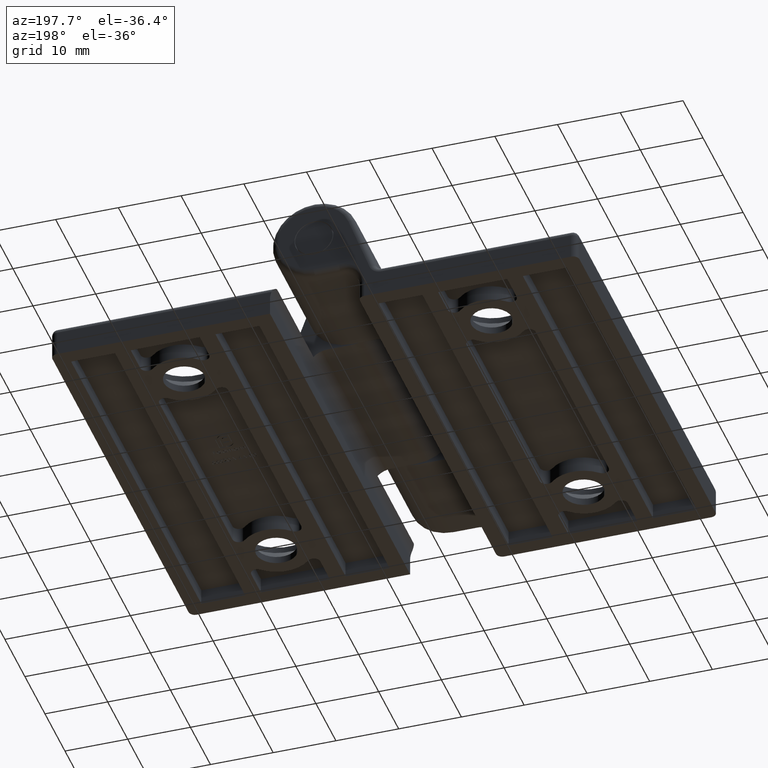
[diagram: clean part render]
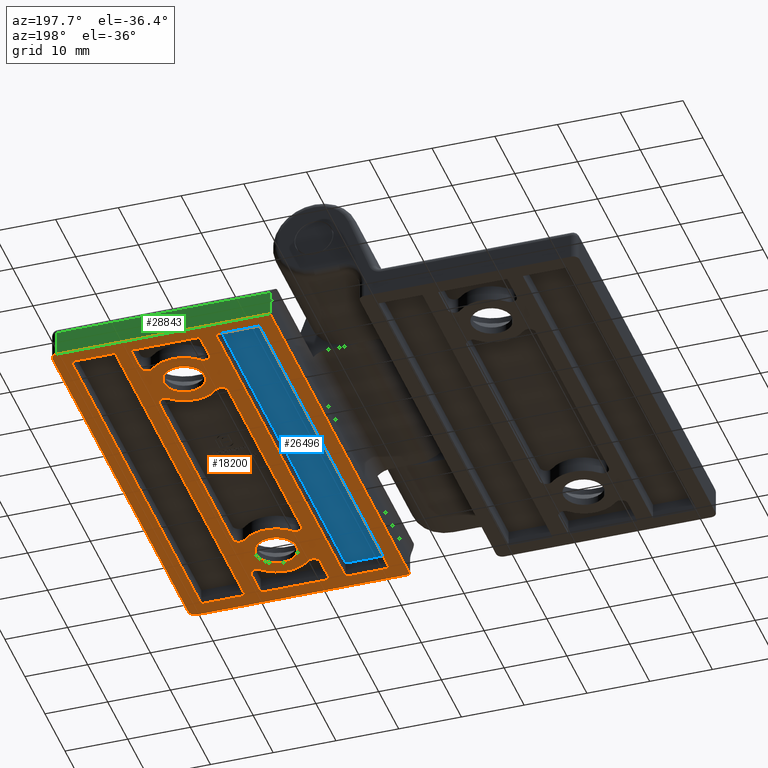
[diagram: same view with three faces highlighted in distinct colors, each labeled with its STEP entity id]
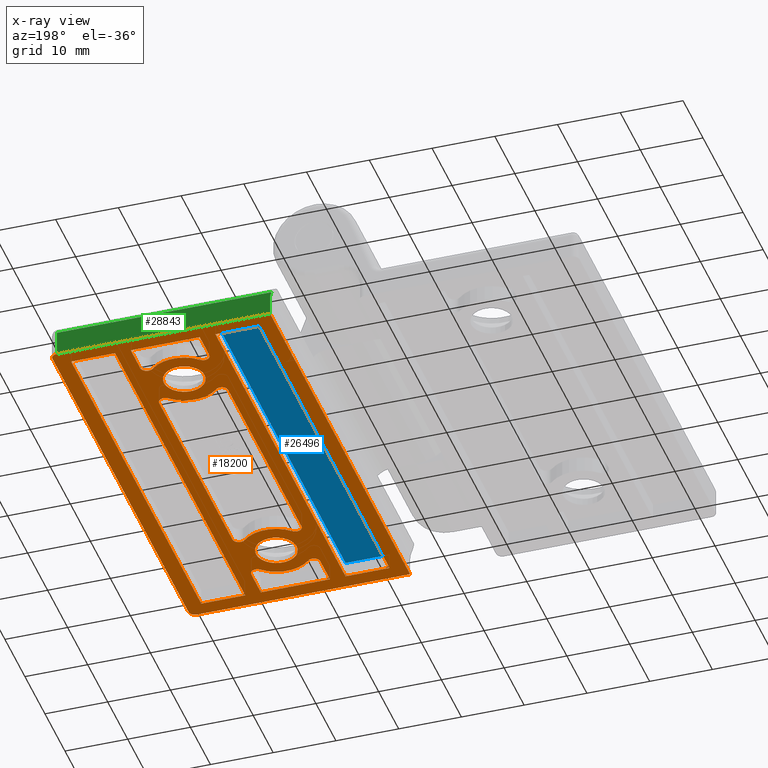
[diagram: x-ray of the same camera — body ghosted, the three highlighted faces saturated]
A machine part, auxiliary view with three faces highlighted in distinct colors.
The next image is the same camera in x-ray (body ghosted, the three faces saturated) — at least one of them is partly hidden behind the body in this view.
Their STEP definitions:

[orange] entity #18200 — the highlighted planar face has unit normal (0, 0, 1).
#126 = DIRECTION ( 'NONE',  ( -1.000000000000000000, 0.000000000000000000, 0.000000000000000000 ) ) ;
#254 = DIRECTION ( 'NONE',  ( 1.000000000000000000, 0.000000000000000000, 0.000000000000000000 ) ) ;
#302 = ORIENTED_EDGE ( 'NONE', *, *, #27271, .T. ) ;
#339 = EDGE_CURVE ( 'NONE', #19906, #16956, #15599, .T. ) ;
#418 = CARTESIAN_POINT ( 'NONE',  ( -28.30769230769230305, 26.96881333523520397, 0.000000000000000000 ) ) ;
#434 = EDGE_LOOP ( 'NONE', ( #302, #23094, #9563, #15243, #28445, #23469 ) ) ;
#641 = DIRECTION ( 'NONE',  ( -1.000000000000000000, 0.000000000000000000, 0.000000000000000000 ) ) ;
#713 = EDGE_CURVE ( 'NONE', #14647, #16236, #10237, .T. ) ;
#848 = AXIS2_PLACEMENT_3D ( 'NONE', #16650, #9593, #12281 ) ;
#996 = DIRECTION ( 'NONE',  ( -1.067522139062650425E-16, -1.000000000000000000, 0.000000000000000000 ) ) ;
#1060 = DIRECTION ( 'NONE',  ( 1.000000000000000000, 0.000000000000000000, 0.000000000000000000 ) ) ;
#1443 = LINE ( 'NONE', #8918, #12200 ) ;
#1570 = CARTESIAN_POINT ( 'NONE',  ( -32.50000000000000000, 32.50000000000000000, 0.000000000000000000 ) ) ;
#1625 = ORIENTED_EDGE ( 'NONE', *, *, #7308, .T. ) ;
#1772 = CARTESIAN_POINT ( 'NONE',  ( 1.503427012513232394E-14, 32.49999999999998579, 0.000000000000000000 ) ) ;
#1856 = CARTESIAN_POINT ( 'NONE',  ( -18.99999999999999645, 18.30958424017656938, 0.000000000000000000 ) ) ;
#1874 = VERTEX_POINT ( 'NONE', #24534 ) ;
#2073 = CARTESIAN_POINT ( 'NONE',  ( -39.50000000000000000, -32.49999999999999289, 0.000000000000000000 ) ) ;
#2319 = CARTESIAN_POINT ( 'NONE',  ( -41.00000000000000000, -35.00000000000000000, 0.000000000000000000 ) ) ;
#2394 = CARTESIAN_POINT ( 'NONE',  ( -41.00000000000000000, 34.00000000000000000, 0.000000000000000000 ) ) ;
#2466 = DIRECTION ( 'NONE',  ( -1.000000000000000000, 0.000000000000000000, 0.000000000000000000 ) ) ;
#2518 = EDGE_CURVE ( 'NONE', #22222, #16956, #24798, .T. ) ;
#2657 = CARTESIAN_POINT ( 'NONE',  ( -20.69230769230769340, 19.03118666476478893, 0.000000000000000000 ) ) ;
#2668 = CARTESIAN_POINT ( 'NONE',  ( -20.00000000000000000, -27.69041575982342351, 0.000000000000000000 ) ) ;
#2721 = AXIS2_PLACEMENT_3D ( 'NONE', #12798, #28779, #1060 ) ;
#2932 = LINE ( 'NONE', #6985, #20434 ) ;
#2958 = CIRCLE ( 'NONE', #848, 5.499999999999998224 ) ;
#3070 = VERTEX_POINT ( 'NONE', #2319 ) ;
#3104 = DIRECTION ( 'NONE',  ( 0.000000000000000000, -1.000000000000000000, 0.000000000000000000 ) ) ;
#3200 = ORIENTED_EDGE ( 'NONE', *, *, #10249, .F. ) ;
#3362 = FACE_BOUND ( 'NONE', #8396, .T. ) ;
#3436 = ORIENTED_EDGE ( 'NONE', *, *, #15527, .T. ) ;
#3513 = CARTESIAN_POINT ( 'NONE',  ( -24.49999999999999289, -23.00000000000000355, 0.000000000000000000 ) ) ;
#3563 = VERTEX_POINT ( 'NONE', #23583 ) ;
#3622 = CIRCLE ( 'NONE', #22412, 1.000000000000000888 ) ;
#3624 = CARTESIAN_POINT ( 'NONE',  ( -28.30769230769230305, 19.03118666476478538, 0.000000000000000000 ) ) ;
#3763 = CARTESIAN_POINT ( 'NONE',  ( -42.00000000000000000, 35.00000000000000000, 0.000000000000000000 ) ) ;
#3911 = LINE ( 'NONE', #19802, #23922 ) ;
#4184 = CARTESIAN_POINT ( 'NONE',  ( -30.00000000000000355, 32.50000000000000000, 0.000000000000000000 ) ) ;
#4198 = CARTESIAN_POINT ( 'NONE',  ( -6.999999999999998224, 35.00000000000000000, 0.000000000000000000 ) ) ;
#4483 = ORIENTED_EDGE ( 'NONE', *, *, #20652, .T. ) ;
#4511 = VERTEX_POINT ( 'NONE', #16127 ) ;
#4529 = ORIENTED_EDGE ( 'NONE', *, *, #7279, .T. ) ;
#4690 = EDGE_CURVE ( 'NONE', #12637, #3563, #24365, .T. ) ;
#4771 = VERTEX_POINT ( 'NONE', #1570 ) ;
#4854 = LINE ( 'NONE', #26626, #5953 ) ;
#4927 = DIRECTION ( 'NONE',  ( 1.000000000000000000, -4.625929269271485914E-16, 0.000000000000000000 ) ) ;
#5024 = DIRECTION ( 'NONE',  ( 0.000000000000000000, 0.000000000000000000, -1.000000000000000000 ) ) ;
#5105 = CARTESIAN_POINT ( 'NONE',  ( -19.00000000000000000, 2.028292064219035684E-15, 0.000000000000000000 ) ) ;
#5126 = CARTESIAN_POINT ( 'NONE',  ( -32.50000000000000000, -0.000000000000000000, 0.000000000000000000 ) ) ;
#5133 = LINE ( 'NONE', #20447, #6585 ) ;
#5402 = CARTESIAN_POINT ( 'NONE',  ( -6.999999999999998224, 35.00000000000000000, 0.000000000000000000 ) ) ;
#5537 = ORIENTED_EDGE ( 'NONE', *, *, #339, .F. ) ;
#5557 = CARTESIAN_POINT ( 'NONE',  ( -16.50000000000000000, -32.50000000000000711, 0.000000000000000000 ) ) ;
#5667 = CARTESIAN_POINT ( 'NONE',  ( -28.99999999999999645, -18.30958424017656583, 0.000000000000000000 ) ) ;
#5687 = EDGE_CURVE ( 'NONE', #26819, #1874, #28907, .T. ) ;
#5953 = VECTOR ( 'NONE', #4927, 1000.000000000000000 ) ;
#6137 = EDGE_CURVE ( 'NONE', #13967, #21976, #27425, .T. ) ;
#6497 = DIRECTION ( 'NONE',  ( 0.000000000000000000, 0.000000000000000000, -1.000000000000000000 ) ) ;
#6563 = EDGE_CURVE ( 'NONE', #26919, #6949, #19840, .T. ) ;
#6585 = VECTOR ( 'NONE', #25147, 1000.000000000000000 ) ;
#6617 = CARTESIAN_POINT ( 'NONE',  ( -9.499999999999998224, 32.49999999999999289, 0.000000000000000000 ) ) ;
#6651 = CARTESIAN_POINT ( 'NONE',  ( -32.50000000000000000, -32.50000000000000000, 0.000000000000000000 ) ) ;
#6685 = EDGE_CURVE ( 'NONE', #23699, #10086, #11026, .T. ) ;
#6851 = DIRECTION ( 'NONE',  ( 1.000000000000000000, 0.000000000000000000, 0.000000000000000000 ) ) ;
#6949 = VERTEX_POINT ( 'NONE', #25988 ) ;
#6978 = FACE_BOUND ( 'NONE', #29653, .T. ) ;
#6985 = CARTESIAN_POINT ( 'NONE',  ( -30.00000000000000355, -3.202566417187951225E-15, 0.000000000000000000 ) ) ;
#7060 = AXIS2_PLACEMENT_3D ( 'NONE', #7084, #23112, #126 ) ;
#7084 = CARTESIAN_POINT ( 'NONE',  ( -20.00000000000000000, 27.69041575982342351, 0.000000000000000000 ) ) ;
#7279 = EDGE_CURVE ( 'NONE', #25441, #12238, #11783, .T. ) ;
#7308 = EDGE_CURVE ( 'NONE', #12238, #9898, #22479, .T. ) ;
#7332 = FACE_OUTER_BOUND ( 'NONE', #12888, .T. ) ;
#7424 = CIRCLE ( 'NONE', #12512, 1.000000000000000888 ) ;
#7632 = LINE ( 'NONE', #3763, #21883 ) ;
#7936 = CIRCLE ( 'NONE', #7060, 1.000000000000000888 ) ;
#8075 = DIRECTION ( 'NONE',  ( -1.000000000000000000, -0.000000000000000000, -0.000000000000000000 ) ) ;
#8174 = CARTESIAN_POINT ( 'NONE',  ( -20.00000000000000000, -18.30958424017656938, 0.000000000000000000 ) ) ;
#8396 = EDGE_LOOP ( 'NONE', ( #25943, #5537, #28563, #10360 ) ) ;
#8473 = EDGE_CURVE ( 'NONE', #6949, #4771, #24550, .T. ) ;
#8474 = ORIENTED_EDGE ( 'NONE', *, *, #12428, .T. ) ;
#8676 = VERTEX_POINT ( 'NONE', #26241 ) ;
#8689 = CARTESIAN_POINT ( 'NONE',  ( -28.99999999999999645, 27.69041575982342707, 0.000000000000000000 ) ) ;
#8702 = CARTESIAN_POINT ( 'NONE',  ( -20.69230769230768630, -26.96881333523520752, 0.000000000000000000 ) ) ;
#8861 = DIRECTION ( 'NONE',  ( -1.000000000000000000, 0.000000000000000000, 0.000000000000000000 ) ) ;
#8876 = VECTOR ( 'NONE', #18149, 1000.000000000000000 ) ;
#8884 = VERTEX_POINT ( 'NONE', #9357 ) ;
#8901 = DIRECTION ( 'NONE',  ( 1.000000000000000000, -4.625929269271485914E-16, 0.000000000000000000 ) ) ;
#8918 = CARTESIAN_POINT ( 'NONE',  ( -9.500000000000001776, 1.267682540136897598E-15, 0.000000000000000000 ) ) ;
#8957 = DIRECTION ( 'NONE',  ( -0.000000000000000000, -0.000000000000000000, 1.000000000000000000 ) ) ;
#8963 = VERTEX_POINT ( 'NONE', #5402 ) ;
#8995 = CARTESIAN_POINT ( 'NONE',  ( -42.00000000000000000, 35.00000000000000000, 0.000000000000000000 ) ) ;
#9002 = ORIENTED_EDGE ( 'NONE', *, *, #21422, .T. ) ;
#9039 = CARTESIAN_POINT ( 'NONE',  ( -1.503427012513233972E-14, -32.50000000000001421, 0.000000000000000000 ) ) ;
#9062 = DIRECTION ( 'NONE',  ( 0.000000000000000000, 0.000000000000000000, -1.000000000000000000 ) ) ;
#9357 = CARTESIAN_POINT ( 'NONE',  ( -21.24999999999999289, -23.00000000000000355, 0.000000000000000000 ) ) ;
#9363 = ORIENTED_EDGE ( 'NONE', *, *, #14128, .F. ) ;
#9451 = EDGE_CURVE ( 'NONE', #4771, #24444, #28749, .T. ) ;
#9563 = ORIENTED_EDGE ( 'NONE', *, *, #20729, .F. ) ;
#9593 = DIRECTION ( 'NONE',  ( 0.000000000000000000, 0.000000000000000000, -1.000000000000000000 ) ) ;
#9732 = DIRECTION ( 'NONE',  ( -1.067522139062650425E-16, -1.000000000000000000, 0.000000000000000000 ) ) ;
#9741 = EDGE_CURVE ( 'NONE', #29250, #29250, #10510, .T. ) ;
#9898 = VERTEX_POINT ( 'NONE', #3624 ) ;
#10086 = VERTEX_POINT ( 'NONE', #17616 ) ;
#10168 = ORIENTED_EDGE ( 'NONE', *, *, #6685, .F. ) ;
#10237 = CIRCLE ( 'NONE', #13835, 1.000000000000000888 ) ;
#10247 = DIRECTION ( 'NONE',  ( 1.067522139062650425E-16, -1.000000000000000000, 0.000000000000000000 ) ) ;
#10249 = EDGE_CURVE ( 'NONE', #23037, #10603, #13302, .T. ) ;
#10306 = AXIS2_PLACEMENT_3D ( 'NONE', #22414, #8957, #8861 ) ;
#10360 = ORIENTED_EDGE ( 'NONE', *, *, #23128, .F. ) ;
#10510 = CIRCLE ( 'NONE', #23695, 3.250000000000002665 ) ;
#10511 = EDGE_CURVE ( 'NONE', #20525, #23037, #17382, .T. ) ;
#10591 = CARTESIAN_POINT ( 'NONE',  ( -28.30769230769230305, -26.96881333523520397, 0.000000000000000000 ) ) ;
#10603 = VERTEX_POINT ( 'NONE', #12913 ) ;
#10606 = AXIS2_PLACEMENT_3D ( 'NONE', #8174, #24110, #19596 ) ;
#10611 = CARTESIAN_POINT ( 'NONE',  ( -19.00000000000000000, -32.50000000000000711, 0.000000000000000000 ) ) ;
#10774 = EDGE_CURVE ( 'NONE', #22577, #19906, #1443, .T. ) ;
#10960 = ORIENTED_EDGE ( 'NONE', *, *, #10511, .F. ) ;
#11026 = LINE ( 'NONE', #8995, #8876 ) ;
#11078 = AXIS2_PLACEMENT_3D ( 'NONE', #18137, #15958, #16058 ) ;
#11262 = FACE_BOUND ( 'NONE', #22635, .T. ) ;
#11293 = EDGE_CURVE ( 'NONE', #24444, #26919, #3911, .T. ) ;
#11415 = ORIENTED_EDGE ( 'NONE', *, *, #713, .F. ) ;
#11470 = EDGE_CURVE ( 'NONE', #11751, #26819, #15716, .T. ) ;
#11751 = VERTEX_POINT ( 'NONE', #4184 ) ;
#11783 = CIRCLE ( 'NONE', #10306, 1.000000000000000888 ) ;
#11907 = CARTESIAN_POINT ( 'NONE',  ( -1.503427012513233972E-14, -32.50000000000001421, 0.000000000000000000 ) ) ;
#11946 = CARTESIAN_POINT ( 'NONE',  ( -19.00000000000000000, 2.028292064219035684E-15, 0.000000000000000000 ) ) ;
#11989 = ORIENTED_EDGE ( 'NONE', *, *, #8473, .F. ) ;
#12113 = ORIENTED_EDGE ( 'NONE', *, *, #6137, .T. ) ;
#12200 = VECTOR ( 'NONE', #13709, 1000.000000000000000 ) ;
#12238 = VERTEX_POINT ( 'NONE', #2657 ) ;
#12247 = CARTESIAN_POINT ( 'NONE',  ( -16.50000000000000000, 32.49999999999999289, 0.000000000000000000 ) ) ;
#12249 = VECTOR ( 'NONE', #10247, 1000.000000000000000 ) ;
#12281 = DIRECTION ( 'NONE',  ( -1.000000000000000000, 0.000000000000000000, 0.000000000000000000 ) ) ;
#12285 = ORIENTED_EDGE ( 'NONE', *, *, #27503, .F. ) ;
#12312 = VECTOR ( 'NONE', #3104, 1000.000000000000000 ) ;
#12428 = EDGE_CURVE ( 'NONE', #8676, #3070, #13885, .T. ) ;
#12512 = AXIS2_PLACEMENT_3D ( 'NONE', #8689, #24715, #29333 ) ;
#12637 = VERTEX_POINT ( 'NONE', #29578 ) ;
#12798 = CARTESIAN_POINT ( 'NONE',  ( -41.00000000000000000, -34.00000000000000000, 0.000000000000000000 ) ) ;
#12888 = EDGE_LOOP ( 'NONE', ( #8474, #22267, #10168, #3436, #27468, #24198 ) ) ;
#12913 = CARTESIAN_POINT ( 'NONE',  ( -30.00000000000000355, -32.50000000000000000, 0.000000000000000000 ) ) ;
#13064 = FACE_BOUND ( 'NONE', #20399, .T. ) ;
#13109 = FACE_BOUND ( 'NONE', #434, .T. ) ;
#13279 = DIRECTION ( 'NONE',  ( -1.000000000000000000, -0.000000000000000000, -0.000000000000000000 ) ) ;
#13302 = LINE ( 'NONE', #9039, #16882 ) ;
#13349 = CARTESIAN_POINT ( 'NONE',  ( -42.00000000000000000, 34.00000000000000000, 0.000000000000000000 ) ) ;
#13372 = EDGE_LOOP ( 'NONE', ( #20935, #22552, #11415, #22295, #3200, #10960 ) ) ;
#13608 = CARTESIAN_POINT ( 'NONE',  ( -19.00000000000000000, 32.49999999999999289, 0.000000000000000000 ) ) ;
#13709 = DIRECTION ( 'NONE',  ( -1.334402673828313093E-16, -1.000000000000000000, 0.000000000000000000 ) ) ;
#13787 = VECTOR ( 'NONE', #996, 1000.000000000000000 ) ;
#13835 = AXIS2_PLACEMENT_3D ( 'NONE', #24726, #6497, #29252 ) ;
#13885 = LINE ( 'NONE', #28709, #29240 ) ;
#13967 = VERTEX_POINT ( 'NONE', #24964 ) ;
#14100 = AXIS2_PLACEMENT_3D ( 'NONE', #25909, #18693, #23300 ) ;
#14128 = EDGE_CURVE ( 'NONE', #25441, #29621, #14591, .T. ) ;
#14240 = DIRECTION ( 'NONE',  ( -1.000000000000000000, 0.000000000000000000, 0.000000000000000000 ) ) ;
#14349 = CARTESIAN_POINT ( 'NONE',  ( 1.503427012513232394E-14, 32.49999999999998579, 0.000000000000000000 ) ) ;
#14591 = LINE ( 'NONE', #5105, #17054 ) ;
#14647 = VERTEX_POINT ( 'NONE', #29234 ) ;
#14753 = CARTESIAN_POINT ( 'NONE',  ( -19.00000000000000000, -18.30958424017656938, 0.000000000000000000 ) ) ;
#14802 = VERTEX_POINT ( 'NONE', #418 ) ;
#14825 = CARTESIAN_POINT ( 'NONE',  ( -20.69230769230769340, 26.96881333523520041, 0.000000000000000000 ) ) ;
#15210 = DIRECTION ( 'NONE',  ( -1.067522139062650425E-16, -1.000000000000000000, 0.000000000000000000 ) ) ;
#15243 = ORIENTED_EDGE ( 'NONE', *, *, #5687, .F. ) ;
#15527 = EDGE_CURVE ( 'NONE', #23699, #4511, #23115, .T. ) ;
#15599 = LINE ( 'NONE', #11907, #27016 ) ;
#15655 = AXIS2_PLACEMENT_3D ( 'NONE', #5667, #23403, #641 ) ;
#15686 = VECTOR ( 'NONE', #23184, 1000.000000000000000 ) ;
#15716 = LINE ( 'NONE', #14349, #18180 ) ;
#15913 = DIRECTION ( 'NONE',  ( -1.000000000000000000, 4.625929269271486900E-16, 0.000000000000000000 ) ) ;
#15958 = DIRECTION ( 'NONE',  ( 0.000000000000000000, 0.000000000000000000, 1.000000000000000000 ) ) ;
#16058 = DIRECTION ( 'NONE',  ( 1.000000000000000000, 0.000000000000000000, 0.000000000000000000 ) ) ;
#16127 = CARTESIAN_POINT ( 'NONE',  ( -41.00000000000000000, 35.00000000000000000, 0.000000000000000000 ) ) ;
#16198 = EDGE_CURVE ( 'NONE', #3070, #10086, #20904, .T. ) ;
#16215 = CARTESIAN_POINT ( 'NONE',  ( -21.24999999999999645, 22.99999999999999645, 0.000000000000000000 ) ) ;
#16236 = VERTEX_POINT ( 'NONE', #10591 ) ;
#16240 = FACE_BOUND ( 'NONE', #13372, .T. ) ;
#16280 = DIRECTION ( 'NONE',  ( -1.000000000000000000, 4.625929269271486900E-16, 0.000000000000000000 ) ) ;
#16319 = DIRECTION ( 'NONE',  ( 1.000000000000000000, -4.625929269271485914E-16, 0.000000000000000000 ) ) ;
#16348 = AXIS2_PLACEMENT_3D ( 'NONE', #17939, #22343, #27142 ) ;
#16367 = DIRECTION ( 'NONE',  ( 0.000000000000000000, 0.000000000000000000, 1.000000000000000000 ) ) ;
#16650 = CARTESIAN_POINT ( 'NONE',  ( -24.50000000000000000, 22.99999999999999645, 0.000000000000000000 ) ) ;
#16764 = EDGE_CURVE ( 'NONE', #8963, #8676, #23757, .T. ) ;
#16882 = VECTOR ( 'NONE', #15913, 1000.000000000000000 ) ;
#16956 = VERTEX_POINT ( 'NONE', #5557 ) ;
#17054 = VECTOR ( 'NONE', #9732, 1000.000000000000000 ) ;
#17303 = FACE_BOUND ( 'NONE', #23203, .T. ) ;
#17377 = VECTOR ( 'NONE', #29470, 1000.000000000000000 ) ;
#17382 = LINE ( 'NONE', #24368, #22359 ) ;
#17444 = AXIS2_PLACEMENT_3D ( 'NONE', #2668, #20545, #2466 ) ;
#17549 = AXIS2_PLACEMENT_3D ( 'NONE', #29321, #9062, #22316 ) ;
#17616 = CARTESIAN_POINT ( 'NONE',  ( -42.00000000000000000, -34.00000000000000000, 0.000000000000000000 ) ) ;
#17763 = VERTEX_POINT ( 'NONE', #29004 ) ;
#17939 = CARTESIAN_POINT ( 'NONE',  ( -42.00000000000000000, 35.00000000000000000, 0.000000000000000000 ) ) ;
#18137 = CARTESIAN_POINT ( 'NONE',  ( -24.49999999999999289, -23.00000000000000355, 0.000000000000000000 ) ) ;
#18149 = DIRECTION ( 'NONE',  ( -0.000000000000000000, -1.000000000000000000, -0.000000000000000000 ) ) ;
#18180 = VECTOR ( 'NONE', #16319, 1000.000000000000000 ) ;
#18184 = DIRECTION ( 'NONE',  ( -0.000000000000000000, -1.000000000000000000, -0.000000000000000000 ) ) ;
#18200 = ADVANCED_FACE ( 'NONE', ( #13109, #7332, #17303, #6978, #13064, #16240, #11262, #3362 ), #22253, .F. ) ;
#18453 = EDGE_CURVE ( 'NONE', #14802, #26688, #2958, .T. ) ;
#18693 = DIRECTION ( 'NONE',  ( 0.000000000000000000, 0.000000000000000000, -1.000000000000000000 ) ) ;
#18946 = CIRCLE ( 'NONE', #11078, 3.250000000000002665 ) ;
#19327 = EDGE_CURVE ( 'NONE', #14647, #10603, #2932, .T. ) ;
#19475 = DIRECTION ( 'NONE',  ( 0.000000000000000000, 0.000000000000000000, -1.000000000000000000 ) ) ;
#19596 = DIRECTION ( 'NONE',  ( -1.000000000000000000, 0.000000000000000000, 0.000000000000000000 ) ) ;
#19802 = CARTESIAN_POINT ( 'NONE',  ( -1.503427012513233972E-14, -32.50000000000001421, 0.000000000000000000 ) ) ;
#19840 = LINE ( 'NONE', #27183, #17377 ) ;
#19906 = VERTEX_POINT ( 'NONE', #25276 ) ;
#20182 = VECTOR ( 'NONE', #18184, 1000.000000000000000 ) ;
#20323 = CIRCLE ( 'NONE', #15655, 1.000000000000000888 ) ;
#20399 = EDGE_LOOP ( 'NONE', ( #12285, #9363, #4529, #1625, #23436, #23324, #9002, #12113 ) ) ;
#20434 = VECTOR ( 'NONE', #22824, 1000.000000000000000 ) ;
#20447 = CARTESIAN_POINT ( 'NONE',  ( -30.00000000000000355, -3.202566417187951225E-15, 0.000000000000000000 ) ) ;
#20525 = VERTEX_POINT ( 'NONE', #22339 ) ;
#20545 = DIRECTION ( 'NONE',  ( -0.000000000000000000, -0.000000000000000000, 1.000000000000000000 ) ) ;
#20652 = EDGE_CURVE ( 'NONE', #8884, #8884, #18946, .T. ) ;
#20729 = EDGE_CURVE ( 'NONE', #1874, #26688, #7936, .T. ) ;
#20904 = CIRCLE ( 'NONE', #2721, 1.000000000000000888 ) ;
#20935 = ORIENTED_EDGE ( 'NONE', *, *, #25631, .T. ) ;
#21334 = VECTOR ( 'NONE', #8901, 1000.000000000000000 ) ;
#21405 = CIRCLE ( 'NONE', #10606, 1.000000000000000888 ) ;
#21422 = EDGE_CURVE ( 'NONE', #3563, #13967, #20323, .T. ) ;
#21490 = CARTESIAN_POINT ( 'NONE',  ( -30.00000000000000355, -3.202566417187951225E-15, 0.000000000000000000 ) ) ;
#21883 = VECTOR ( 'NONE', #13279, 1000.000000000000000 ) ;
#21976 = VERTEX_POINT ( 'NONE', #25193 ) ;
#22128 = DIRECTION ( 'NONE',  ( -1.000000000000000000, 4.625929269271486900E-16, 0.000000000000000000 ) ) ;
#22222 = VERTEX_POINT ( 'NONE', #12247 ) ;
#22253 = PLANE ( 'NONE',  #16348 ) ;
#22267 = ORIENTED_EDGE ( 'NONE', *, *, #16198, .T. ) ;
#22295 = ORIENTED_EDGE ( 'NONE', *, *, #19327, .T. ) ;
#22316 = DIRECTION ( 'NONE',  ( -1.000000000000000000, 0.000000000000000000, 0.000000000000000000 ) ) ;
#22339 = CARTESIAN_POINT ( 'NONE',  ( -19.00000000000000355, -27.69041575982342351, 0.000000000000000000 ) ) ;
#22343 = DIRECTION ( 'NONE',  ( 0.000000000000000000, 0.000000000000000000, 1.000000000000000000 ) ) ;
#22359 = VECTOR ( 'NONE', #15210, 1000.000000000000000 ) ;
#22404 = EDGE_CURVE ( 'NONE', #23227, #16236, #26043, .T. ) ;
#22412 = AXIS2_PLACEMENT_3D ( 'NONE', #23374, #5024, #14240 ) ;
#22414 = CARTESIAN_POINT ( 'NONE',  ( -20.00000000000000000, 18.30958424017656938, 0.000000000000000000 ) ) ;
#22479 = CIRCLE ( 'NONE', #17549, 5.499999999999998224 ) ;
#22541 = AXIS2_PLACEMENT_3D ( 'NONE', #3513, #19475, #28799 ) ;
#22552 = ORIENTED_EDGE ( 'NONE', *, *, #22404, .T. ) ;
#22577 = VERTEX_POINT ( 'NONE', #6617 ) ;
#22635 = EDGE_LOOP ( 'NONE', ( #26998, #11989, #27582, #23993 ) ) ;
#22824 = DIRECTION ( 'NONE',  ( 1.067522139062650425E-16, -1.000000000000000000, 0.000000000000000000 ) ) ;
#22988 = DIRECTION ( 'NONE',  ( -0.000000000000000000, -0.000000000000000000, -1.000000000000000000 ) ) ;
#23037 = VERTEX_POINT ( 'NONE', #10611 ) ;
#23094 = ORIENTED_EDGE ( 'NONE', *, *, #18453, .T. ) ;
#23112 = DIRECTION ( 'NONE',  ( 0.000000000000000000, 0.000000000000000000, -1.000000000000000000 ) ) ;
#23115 = CIRCLE ( 'NONE', #25305, 1.000000000000000888 ) ;
#23128 = EDGE_CURVE ( 'NONE', #22222, #22577, #4854, .T. ) ;
#23184 = DIRECTION ( 'NONE',  ( -1.067522139062650425E-16, -1.000000000000000000, 0.000000000000000000 ) ) ;
#23203 = EDGE_LOOP ( 'NONE', ( #4483 ) ) ;
#23227 = VERTEX_POINT ( 'NONE', #8702 ) ;
#23300 = DIRECTION ( 'NONE',  ( -1.000000000000000000, 0.000000000000000000, 0.000000000000000000 ) ) ;
#23324 = ORIENTED_EDGE ( 'NONE', *, *, #4690, .T. ) ;
#23374 = CARTESIAN_POINT ( 'NONE',  ( -28.99999999999999645, 18.30958424017656583, 0.000000000000000000 ) ) ;
#23403 = DIRECTION ( 'NONE',  ( -0.000000000000000000, -0.000000000000000000, 1.000000000000000000 ) ) ;
#23436 = ORIENTED_EDGE ( 'NONE', *, *, #26543, .F. ) ;
#23469 = ORIENTED_EDGE ( 'NONE', *, *, #24996, .T. ) ;
#23583 = CARTESIAN_POINT ( 'NONE',  ( -30.00000000000000000, -18.30958424017656583, 0.000000000000000000 ) ) ;
#23695 = AXIS2_PLACEMENT_3D ( 'NONE', #25533, #16367, #254 ) ;
#23699 = VERTEX_POINT ( 'NONE', #13349 ) ;
#23757 = LINE ( 'NONE', #4198, #20182 ) ;
#23868 = CARTESIAN_POINT ( 'NONE',  ( -16.50000000000000000, 1.761411529453373312E-15, 0.000000000000000000 ) ) ;
#23922 = VECTOR ( 'NONE', #22128, 1000.000000000000000 ) ;
#23993 = ORIENTED_EDGE ( 'NONE', *, *, #11293, .F. ) ;
#24110 = DIRECTION ( 'NONE',  ( 0.000000000000000000, 0.000000000000000000, -1.000000000000000000 ) ) ;
#24198 = ORIENTED_EDGE ( 'NONE', *, *, #16764, .T. ) ;
#24365 = LINE ( 'NONE', #21490, #12249 ) ;
#24368 = CARTESIAN_POINT ( 'NONE',  ( -19.00000000000000000, 2.028292064219035684E-15, 0.000000000000000000 ) ) ;
#24444 = VERTEX_POINT ( 'NONE', #6651 ) ;
#24534 = CARTESIAN_POINT ( 'NONE',  ( -18.99999999999999645, 27.69041575982342351, 0.000000000000000000 ) ) ;
#24550 = LINE ( 'NONE', #1772, #21334 ) ;
#24715 = DIRECTION ( 'NONE',  ( -0.000000000000000000, -0.000000000000000000, 1.000000000000000000 ) ) ;
#24726 = CARTESIAN_POINT ( 'NONE',  ( -28.99999999999999645, -27.69041575982342707, 0.000000000000000000 ) ) ;
#24798 = LINE ( 'NONE', #23868, #13787 ) ;
#24964 = CARTESIAN_POINT ( 'NONE',  ( -28.30769230769229594, -19.03118666476479603, 0.000000000000000000 ) ) ;
#24996 = EDGE_CURVE ( 'NONE', #11751, #17763, #5133, .T. ) ;
#25136 = ORIENTED_EDGE ( 'NONE', *, *, #9741, .T. ) ;
#25147 = DIRECTION ( 'NONE',  ( 1.067522139062650425E-16, -1.000000000000000000, 0.000000000000000000 ) ) ;
#25193 = CARTESIAN_POINT ( 'NONE',  ( -20.69230769230769340, -19.03118666476478893, 0.000000000000000000 ) ) ;
#25276 = CARTESIAN_POINT ( 'NONE',  ( -9.500000000000007105, -32.50000000000000711, 0.000000000000000000 ) ) ;
#25305 = AXIS2_PLACEMENT_3D ( 'NONE', #2394, #22988, #6851 ) ;
#25441 = VERTEX_POINT ( 'NONE', #1856 ) ;
#25533 = CARTESIAN_POINT ( 'NONE',  ( -24.50000000000000000, 22.99999999999999645, 0.000000000000000000 ) ) ;
#25631 = EDGE_CURVE ( 'NONE', #20525, #23227, #26569, .T. ) ;
#25909 = CARTESIAN_POINT ( 'NONE',  ( -24.49999999999999289, -23.00000000000000355, 0.000000000000000000 ) ) ;
#25943 = ORIENTED_EDGE ( 'NONE', *, *, #2518, .T. ) ;
#25983 = EDGE_CURVE ( 'NONE', #8963, #4511, #7632, .T. ) ;
#25988 = CARTESIAN_POINT ( 'NONE',  ( -39.50000000000000000, 32.50000000000000711, 0.000000000000000000 ) ) ;
#26043 = CIRCLE ( 'NONE', #22541, 5.499999999999998224 ) ;
#26241 = CARTESIAN_POINT ( 'NONE',  ( -6.999999999999998224, -35.00000000000000000, 0.000000000000000000 ) ) ;
#26543 = EDGE_CURVE ( 'NONE', #12637, #9898, #3622, .T. ) ;
#26569 = CIRCLE ( 'NONE', #17444, 1.000000000000000888 ) ;
#26626 = CARTESIAN_POINT ( 'NONE',  ( 1.503427012513232394E-14, 32.49999999999998579, 0.000000000000000000 ) ) ;
#26688 = VERTEX_POINT ( 'NONE', #14825 ) ;
#26819 = VERTEX_POINT ( 'NONE', #13608 ) ;
#26919 = VERTEX_POINT ( 'NONE', #2073 ) ;
#26998 = ORIENTED_EDGE ( 'NONE', *, *, #9451, .F. ) ;
#27016 = VECTOR ( 'NONE', #16280, 1000.000000000000000 ) ;
#27142 = DIRECTION ( 'NONE',  ( 1.000000000000000000, 0.000000000000000000, -0.000000000000000000 ) ) ;
#27183 = CARTESIAN_POINT ( 'NONE',  ( -39.50000000000000000, 0.000000000000000000, 0.000000000000000000 ) ) ;
#27271 = EDGE_CURVE ( 'NONE', #17763, #14802, #7424, .T. ) ;
#27425 = CIRCLE ( 'NONE', #14100, 5.499999999999998224 ) ;
#27468 = ORIENTED_EDGE ( 'NONE', *, *, #25983, .F. ) ;
#27503 = EDGE_CURVE ( 'NONE', #29621, #21976, #21405, .T. ) ;
#27582 = ORIENTED_EDGE ( 'NONE', *, *, #6563, .F. ) ;
#28445 = ORIENTED_EDGE ( 'NONE', *, *, #11470, .F. ) ;
#28563 = ORIENTED_EDGE ( 'NONE', *, *, #10774, .F. ) ;
#28709 = CARTESIAN_POINT ( 'NONE',  ( -42.00000000000000000, -35.00000000000000000, 0.000000000000000000 ) ) ;
#28749 = LINE ( 'NONE', #5126, #12312 ) ;
#28779 = DIRECTION ( 'NONE',  ( -0.000000000000000000, -0.000000000000000000, -1.000000000000000000 ) ) ;
#28799 = DIRECTION ( 'NONE',  ( -1.000000000000000000, 0.000000000000000000, 0.000000000000000000 ) ) ;
#28907 = LINE ( 'NONE', #11946, #15686 ) ;
#29004 = CARTESIAN_POINT ( 'NONE',  ( -30.00000000000000711, 27.69041575982342351, 0.000000000000000000 ) ) ;
#29234 = CARTESIAN_POINT ( 'NONE',  ( -30.00000000000000000, -27.69041575982342707, 0.000000000000000000 ) ) ;
#29240 = VECTOR ( 'NONE', #8075, 1000.000000000000000 ) ;
#29250 = VERTEX_POINT ( 'NONE', #16215 ) ;
#29252 = DIRECTION ( 'NONE',  ( -1.000000000000000000, 0.000000000000000000, 0.000000000000000000 ) ) ;
#29321 = CARTESIAN_POINT ( 'NONE',  ( -24.50000000000000000, 22.99999999999999645, 0.000000000000000000 ) ) ;
#29333 = DIRECTION ( 'NONE',  ( -1.000000000000000000, -3.469446951953611033E-15, 0.000000000000000000 ) ) ;
#29470 = DIRECTION ( 'NONE',  ( 0.000000000000000000, 1.000000000000000000, 0.000000000000000000 ) ) ;
#29578 = CARTESIAN_POINT ( 'NONE',  ( -30.00000000000000711, 18.30958424017656583, 0.000000000000000000 ) ) ;
#29621 = VERTEX_POINT ( 'NONE', #14753 ) ;
#29653 = EDGE_LOOP ( 'NONE', ( #25136 ) ) ;

[blue] entity #26496 — the highlighted planar face has unit normal (-0, 0, -1).
#281 = LINE ( 'NONE', #20934, #13215 ) ;
#817 = VECTOR ( 'NONE', #4991, 1000.000000000000000 ) ;
#995 = VERTEX_POINT ( 'NONE', #5384 ) ;
#1609 = DIRECTION ( 'NONE',  ( -1.067522139062650425E-16, -1.000000000000000000, 0.000000000000000000 ) ) ;
#1635 = CARTESIAN_POINT ( 'NONE',  ( -9.500000000000007105, -32.50000000000000711, 2.500000000000000000 ) ) ;
#1978 = ORIENTED_EDGE ( 'NONE', *, *, #27596, .T. ) ;
#2510 = LINE ( 'NONE', #16807, #22898 ) ;
#4617 = CARTESIAN_POINT ( 'NONE',  ( 0.000000000000000000, 0.000000000000000000, 2.500000000000000000 ) ) ;
#4991 = DIRECTION ( 'NONE',  ( -1.334402673828313093E-16, -1.000000000000000000, 0.000000000000000000 ) ) ;
#5384 = CARTESIAN_POINT ( 'NONE',  ( -16.50000000000000000, -32.50000000000000711, 2.500000000000000000 ) ) ;
#5423 = CARTESIAN_POINT ( 'NONE',  ( -9.499999999999998224, 32.49999999999999289, 2.500000000000000000 ) ) ;
#6441 = EDGE_CURVE ( 'NONE', #6775, #995, #25979, .T. ) ;
#6446 = CARTESIAN_POINT ( 'NONE',  ( -16.50000000000000000, 1.761411529453373312E-15, 2.500000000000000000 ) ) ;
#6775 = VERTEX_POINT ( 'NONE', #13632 ) ;
#6849 = PLANE ( 'NONE',  #21846 ) ;
#9249 = DIRECTION ( 'NONE',  ( 0.000000000000000000, 0.000000000000000000, -1.000000000000000000 ) ) ;
#9517 = CARTESIAN_POINT ( 'NONE',  ( -9.500000000000001776, 1.267682540136897598E-15, 2.500000000000000000 ) ) ;
#10384 = EDGE_CURVE ( 'NONE', #18717, #995, #2510, .T. ) ;
#10649 = VECTOR ( 'NONE', #1609, 1000.000000000000000 ) ;
#13215 = VECTOR ( 'NONE', #21038, 1000.000000000000000 ) ;
#13285 = VERTEX_POINT ( 'NONE', #5423 ) ;
#13632 = CARTESIAN_POINT ( 'NONE',  ( -16.50000000000000000, 32.49999999999999289, 2.500000000000000000 ) ) ;
#15271 = EDGE_LOOP ( 'NONE', ( #28223, #1978, #29635, #16632 ) ) ;
#16632 = ORIENTED_EDGE ( 'NONE', *, *, #10384, .T. ) ;
#16807 = CARTESIAN_POINT ( 'NONE',  ( -1.503427012513233972E-14, -32.50000000000001421, 2.500000000000000000 ) ) ;
#17948 = LINE ( 'NONE', #9517, #817 ) ;
#18717 = VERTEX_POINT ( 'NONE', #1635 ) ;
#20934 = CARTESIAN_POINT ( 'NONE',  ( 1.503427012513232394E-14, 32.49999999999998579, 2.500000000000000000 ) ) ;
#21038 = DIRECTION ( 'NONE',  ( 1.000000000000000000, -4.625929269271485914E-16, 0.000000000000000000 ) ) ;
#21846 = AXIS2_PLACEMENT_3D ( 'NONE', #4617, #9249, #29593 ) ;
#22898 = VECTOR ( 'NONE', #26275, 1000.000000000000000 ) ;
#25431 = FACE_OUTER_BOUND ( 'NONE', #15271, .T. ) ;
#25612 = EDGE_CURVE ( 'NONE', #13285, #18717, #17948, .T. ) ;
#25979 = LINE ( 'NONE', #6446, #10649 ) ;
#26275 = DIRECTION ( 'NONE',  ( -1.000000000000000000, 4.625929269271486900E-16, 0.000000000000000000 ) ) ;
#26496 = ADVANCED_FACE ( 'NONE', ( #25431 ), #6849, .T. ) ;
#27596 = EDGE_CURVE ( 'NONE', #6775, #13285, #281, .T. ) ;
#28223 = ORIENTED_EDGE ( 'NONE', *, *, #6441, .F. ) ;
#29593 = DIRECTION ( 'NONE',  ( -1.000000000000000000, 0.000000000000000000, -0.000000000000000000 ) ) ;
#29635 = ORIENTED_EDGE ( 'NONE', *, *, #25612, .T. ) ;

[green] entity #28843 — the highlighted planar face has unit normal (0, -1, 0).
#130 = VECTOR ( 'NONE', #10856, 1000.000000000000000 ) ;
#190 = CARTESIAN_POINT ( 'NONE',  ( -3.999999999999997335, -35.00000000000000000, 4.000000000000000888 ) ) ;
#462 = CARTESIAN_POINT ( 'NONE',  ( -6.999999999999997335, -35.00000000000000000, 2.899999999999998579 ) ) ;
#497 = ORIENTED_EDGE ( 'NONE', *, *, #3440, .T. ) ;
#525 = LINE ( 'NONE', #26901, #130 ) ;
#618 = FACE_OUTER_BOUND ( 'NONE', #8825, .T. ) ;
#1240 = EDGE_CURVE ( 'NONE', #23630, #3070, #525, .T. ) ;
#2319 = CARTESIAN_POINT ( 'NONE',  ( -41.00000000000000000, -35.00000000000000000, 0.000000000000000000 ) ) ;
#2970 = LINE ( 'NONE', #190, #8400 ) ;
#3070 = VERTEX_POINT ( 'NONE', #2319 ) ;
#3440 = EDGE_CURVE ( 'NONE', #25504, #23630, #2970, .T. ) ;
#3813 = ORIENTED_EDGE ( 'NONE', *, *, #1240, .T. ) ;
#4052 = DIRECTION ( 'NONE',  ( -0.000000000000000000, -1.000000000000000000, -0.000000000000000000 ) ) ;
#5673 = CARTESIAN_POINT ( 'NONE',  ( -6.999999999999998224, -35.00000000000000000, 0.000000000000000000 ) ) ;
#7993 = DIRECTION ( 'NONE',  ( -2.990902544787598592E-16, -0.000000000000000000, -1.000000000000000000 ) ) ;
#8075 = DIRECTION ( 'NONE',  ( -1.000000000000000000, -0.000000000000000000, -0.000000000000000000 ) ) ;
#8400 = VECTOR ( 'NONE', #16412, 1000.000000000000000 ) ;
#8676 = VERTEX_POINT ( 'NONE', #26241 ) ;
#8825 = EDGE_LOOP ( 'NONE', ( #497, #3813, #25867, #9667, #16814 ) ) ;
#8990 = CARTESIAN_POINT ( 'NONE',  ( -6.791057147390570314, -35.00000000000000000, 4.000000000000000888 ) ) ;
#9667 = ORIENTED_EDGE ( 'NONE', *, *, #17669, .F. ) ;
#9880 = LINE ( 'NONE', #5673, #21612 ) ;
#10750 = AXIS2_PLACEMENT_3D ( 'NONE', #17749, #4052, #13276 ) ;
#10856 = DIRECTION ( 'NONE',  ( -0.000000000000000000, -0.000000000000000000, -1.000000000000000000 ) ) ;
#12428 = EDGE_CURVE ( 'NONE', #8676, #3070, #13885, .T. ) ;
#13276 = DIRECTION ( 'NONE',  ( 0.000000000000000000, 0.000000000000000000, 1.000000000000000000 ) ) ;
#13885 = LINE ( 'NONE', #28709, #29240 ) ;
#15074 = CARTESIAN_POINT ( 'NONE',  ( -41.00000000000000000, -35.00000000000000000, 4.000000000000000000 ) ) ;
#16005 = DIRECTION ( 'NONE',  ( 0.000000000000000000, 1.000000000000000000, 0.000000000000000000 ) ) ;
#16412 = DIRECTION ( 'NONE',  ( -1.000000000000000000, 0.000000000000000000, -2.774597523730342882E-17 ) ) ;
#16814 = ORIENTED_EDGE ( 'NONE', *, *, #21172, .F. ) ;
#17669 = EDGE_CURVE ( 'NONE', #25648, #8676, #9880, .T. ) ;
#17749 = CARTESIAN_POINT ( 'NONE',  ( -3.999999999999997335, -35.00000000000000000, 2.899999999999999023 ) ) ;
#21172 = EDGE_CURVE ( 'NONE', #25504, #25648, #28246, .T. ) ;
#21612 = VECTOR ( 'NONE', #7993, 1000.000000000000000 ) ;
#22762 = CARTESIAN_POINT ( 'NONE',  ( -3.999999999999997335, -35.00000000000000000, 2.899999999999999023 ) ) ;
#22963 = PLANE ( 'NONE',  #24555 ) ;
#23630 = VERTEX_POINT ( 'NONE', #15074 ) ;
#24555 = AXIS2_PLACEMENT_3D ( 'NONE', #22762, #16005, #27479 ) ;
#25504 = VERTEX_POINT ( 'NONE', #8990 ) ;
#25648 = VERTEX_POINT ( 'NONE', #462 ) ;
#25867 = ORIENTED_EDGE ( 'NONE', *, *, #12428, .F. ) ;
#26241 = CARTESIAN_POINT ( 'NONE',  ( -6.999999999999998224, -35.00000000000000000, 0.000000000000000000 ) ) ;
#26901 = CARTESIAN_POINT ( 'NONE',  ( -41.00000000000000000, -35.00000000000000000, 2.899999999999999023 ) ) ;
#27479 = DIRECTION ( 'NONE',  ( 0.000000000000000000, -0.000000000000000000, 1.000000000000000000 ) ) ;
#28246 = CIRCLE ( 'NONE', #10750, 3.000000000000000000 ) ;
#28709 = CARTESIAN_POINT ( 'NONE',  ( -42.00000000000000000, -35.00000000000000000, 0.000000000000000000 ) ) ;
#28843 = ADVANCED_FACE ( 'NONE', ( #618 ), #22963, .F. ) ;
#29240 = VECTOR ( 'NONE', #8075, 1000.000000000000000 ) ;